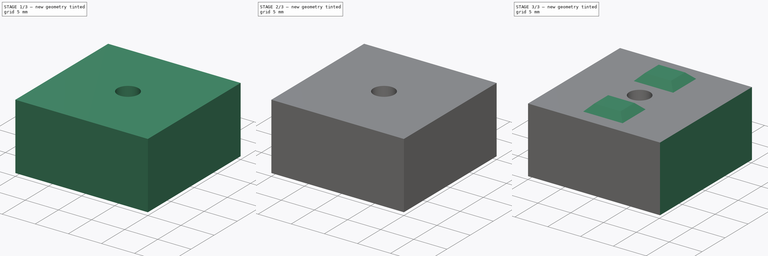
[diagram: build sequence overview — one tinted view per stage of 3, left to right]
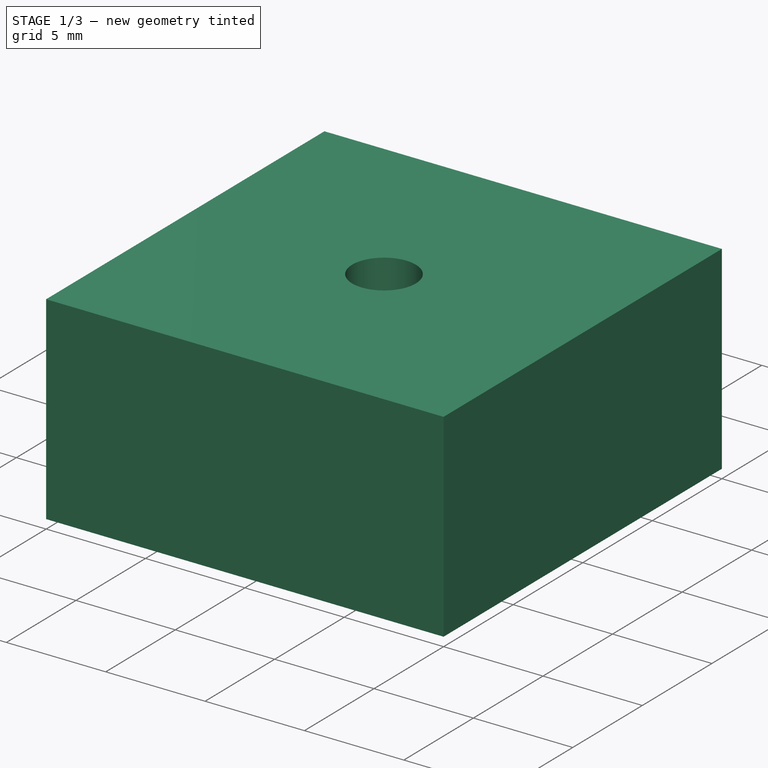
[diagram: stage 1 of 3 — iso view after this stage's code; geometry added in this stage tinted green]
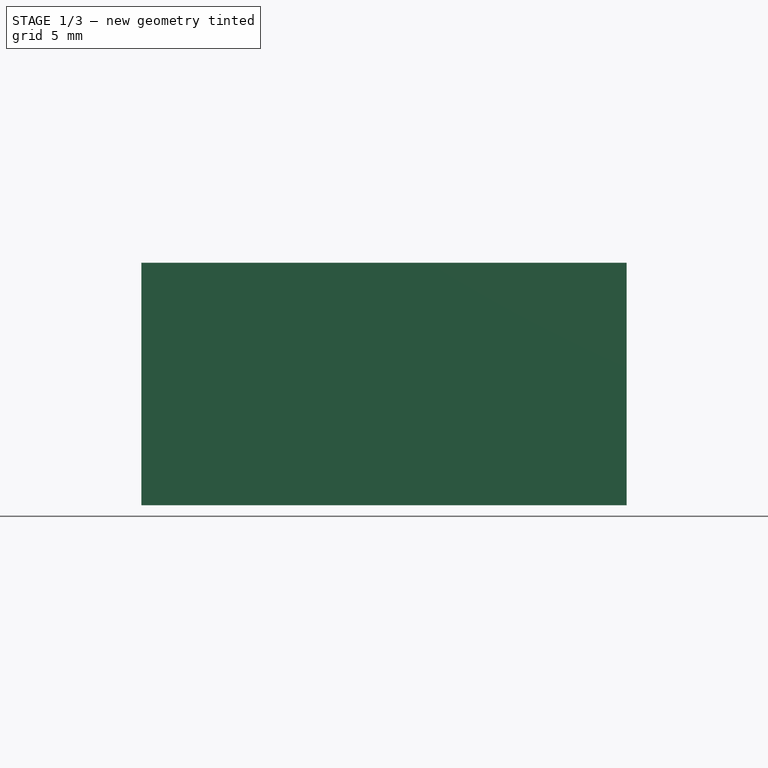
[diagram: stage 1 of 3 — front view after this stage's code; geometry added in this stage tinted green]
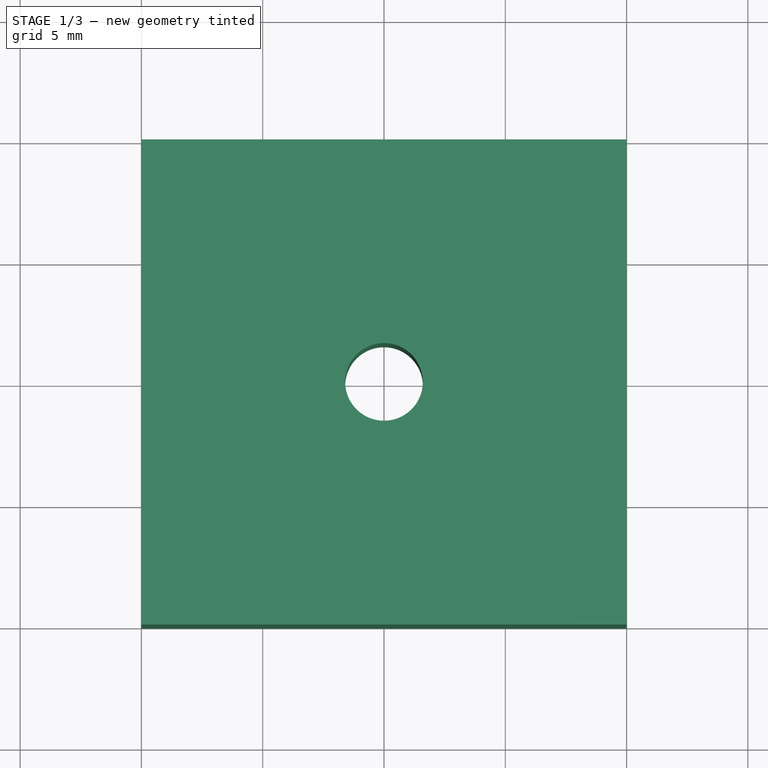
[diagram: stage 1 of 3 — top view after this stage's code; geometry added in this stage tinted green]
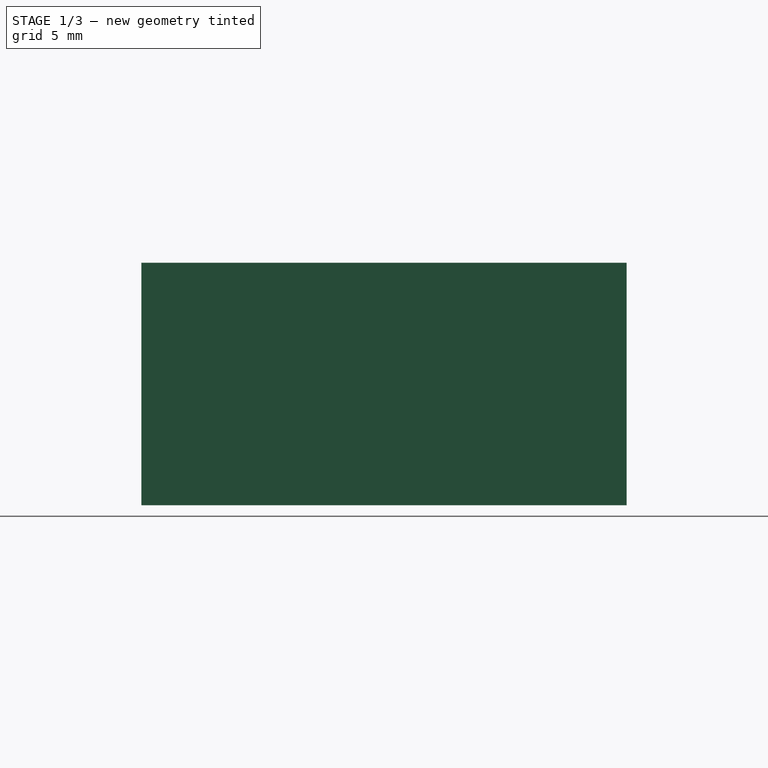
[diagram: stage 1 of 3 — right view after this stage's code; geometry added in this stage tinted green]
FCSTD DOCUMENT  (FreeCAD 1.0R39109 (Git))
Label: m3 2020 mount
License: All rights reserved
objects: Sketcher::SketchObject×6, PartDesign::Pocket×4, PartDesign::Pad×3, PartDesign::Body×1
note: 34 computed .brp shape members not serialized (recipe doc carries the construction recipe); baked Part::Feature solids carry a one-line shape summary decoded from their .brp

FEATURE [Sketcher::SketchObject] Sketch001
  ArcFitTolerance = 1e-06
  AttachmentSupport = -> [XY_Plane]
  FullyConstrained = true
  MakeInternals = false
  MapMode = 5
  sketch-geometry (5):
    g0: LineSegment StartX=-10 StartY=10 StartZ=0 EndX=-10 EndY=-10 EndZ=0
    g1: LineSegment StartX=-10 StartY=-10 StartZ=0 EndX=10 EndY=-10 EndZ=0
    g2: LineSegment StartX=10 StartY=-10 StartZ=0 EndX=10 EndY=10 EndZ=0
    g3: LineSegment StartX=10 StartY=10 StartZ=0 EndX=-10 EndY=10 EndZ=0
    g4: GeomPoint [constr] X=0 Y=0 Z=0
  constraints (12):
    c: Coincident(g0,g1)
    c: Coincident(g1,g2)
    c: Coincident(g2,g3)
    c: Coincident(g3,g0)
    c: Vertical(g0)
    c: Vertical(g2)
    c: Horizontal(g1)
    c: Horizontal(g3)
    c: Symmetric(g2,g0,g4)
    c: Coincident(g4,g-1)
    c: DistanceX(g3,g3) = 20
    c: Equal(g3,g2)
FEATURE [PartDesign::Pad] Pad
  Direction = (0,0,1)
  Length = 10
  Length2 = 10
  Profile = -> Sketch001
  ReferenceAxis = -> Sketch001 [N_Axis]
  Refine = true
  Suppressed = false
  Type = 0
FEATURE [Sketcher::SketchObject] Sketch002
  ArcFitTolerance = 1e-06
  AttachmentSupport = -> [XY_Plane]
  FullyConstrained = true
  MakeInternals = false
  MapMode = 5
  sketch-geometry (1):
    g0: Circle CenterX=0 CenterY=0 CenterZ=0 NormalX=0 NormalY=0 NormalZ=1 AngleXU=0 Radius=3.5
  constraints (2):
    c: Coincident(g0,g-1)
    c: Diameter(g0) = 7
FEATURE [Sketcher::SketchObject] Sketch003
  ArcFitTolerance = 1e-06
  AttachmentSupport = -> [XY_Plane]
  FullyConstrained = true
  MakeInternals = false
  MapMode = 5
  sketch-geometry (1):
    g0: Circle CenterX=0 CenterY=0 CenterZ=0 NormalX=0 NormalY=0 NormalZ=1 AngleXU=0 Radius=1.6
  constraints (2):
    c: Coincident(g0,g-1)
    c: Diameter(g0) = 3.2
FEATURE [PartDesign::Pocket] Pocket
  BaseFeature = -> Pad
  Direction = (0,0,-1)
  Length = 5
  Length2 = 5
  Midplane = true
  Profile = -> Sketch003
  ReferenceAxis = -> Sketch003 [N_Axis]
  Refine = true
  Suppressed = false
  Type = 1
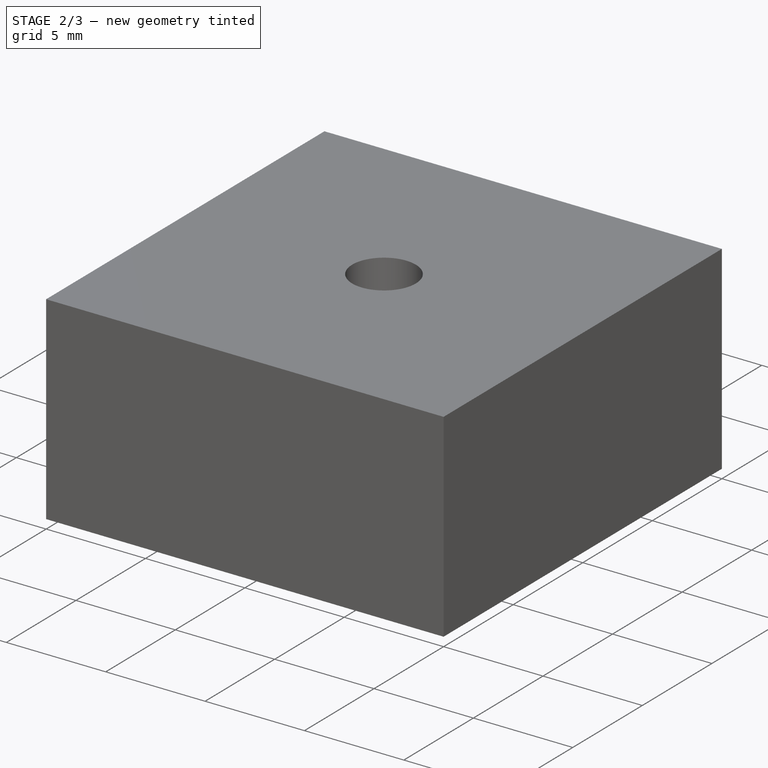
[diagram: stage 2 of 3 — iso view after this stage's code; geometry added in this stage tinted green]
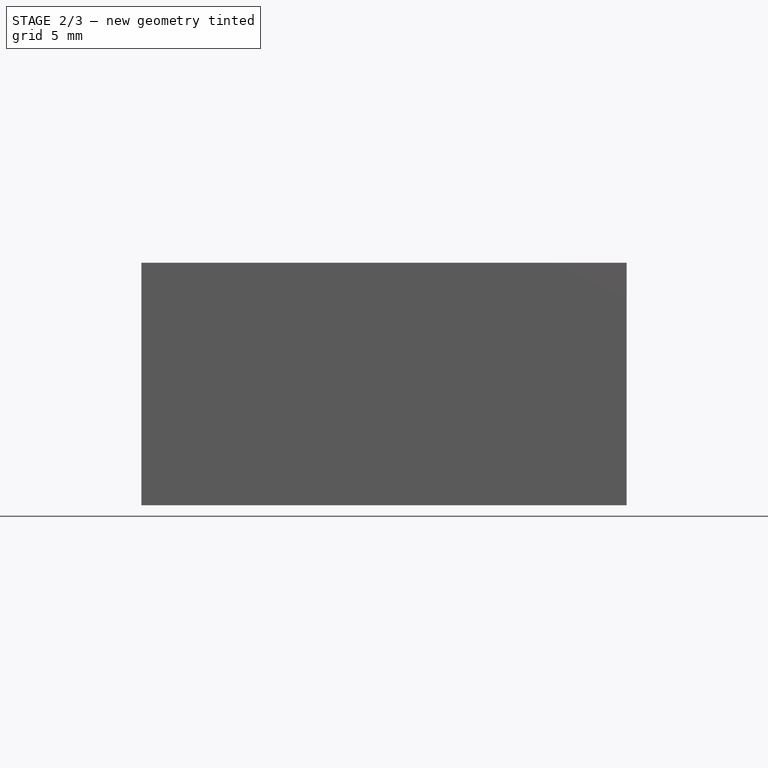
[diagram: stage 2 of 3 — front view after this stage's code; geometry added in this stage tinted green]
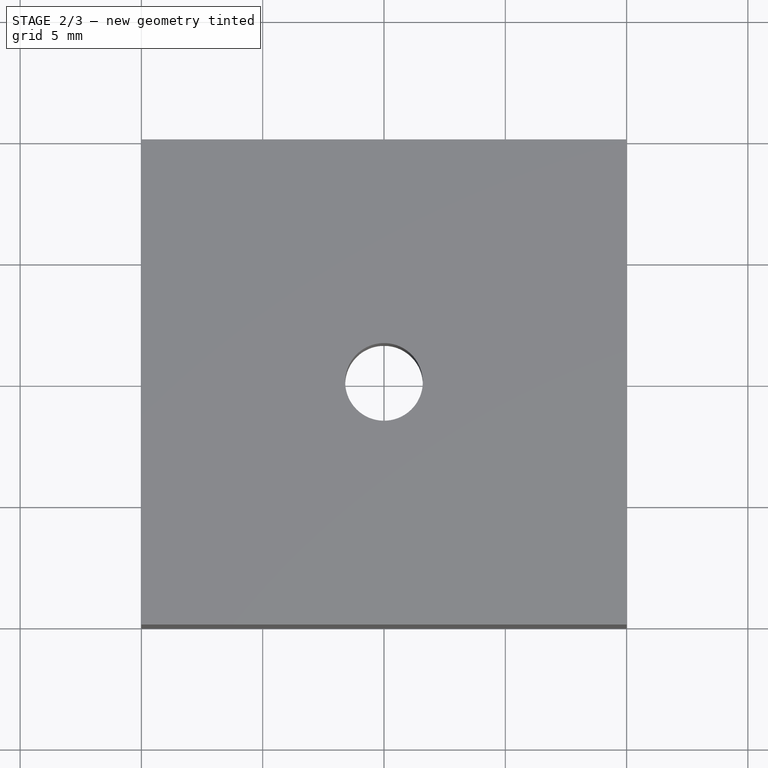
[diagram: stage 2 of 3 — top view after this stage's code; geometry added in this stage tinted green]
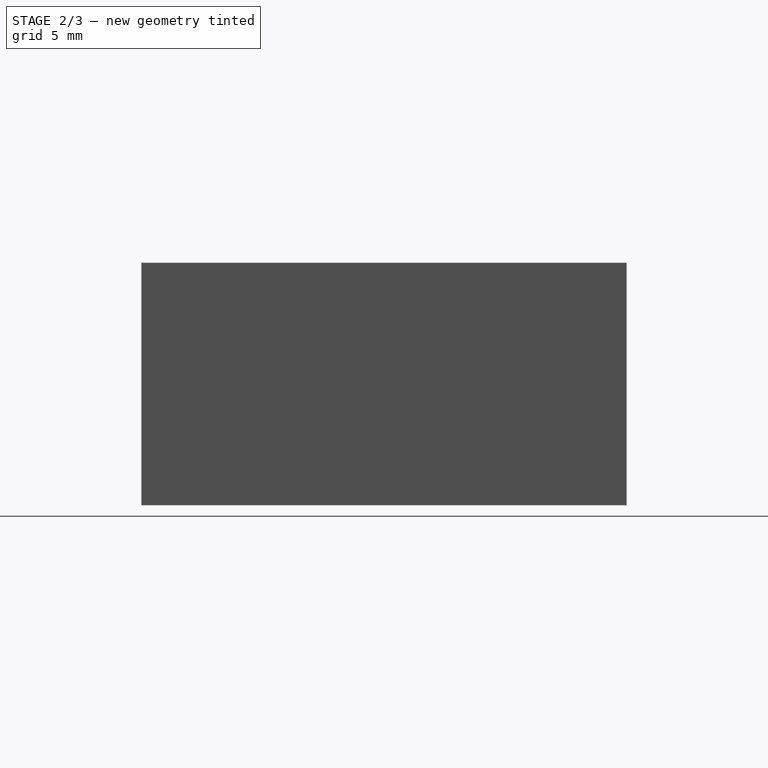
[diagram: stage 2 of 3 — right view after this stage's code; geometry added in this stage tinted green]
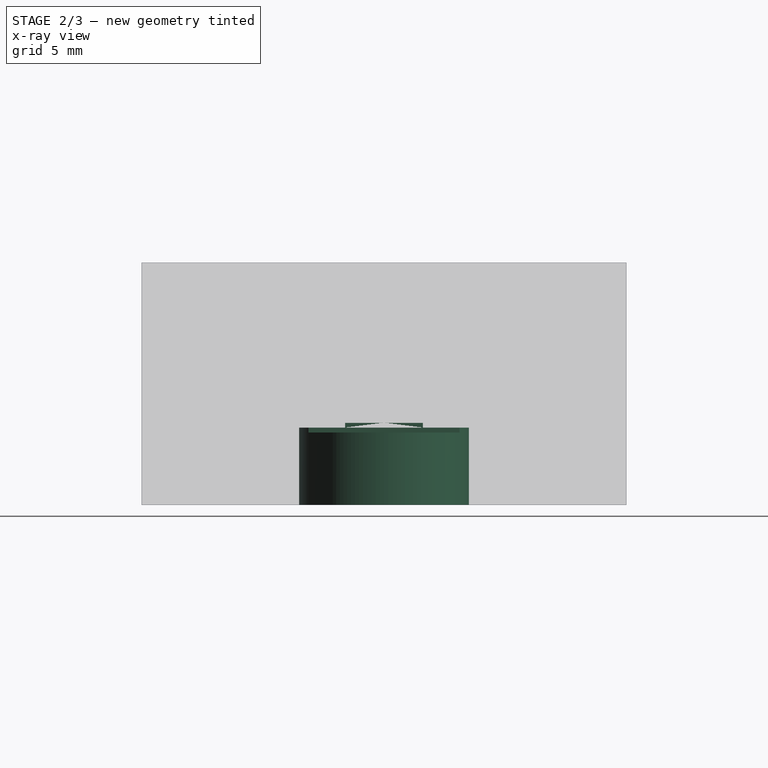
[diagram: stage 2 of 3 — x-ray composite at the right view; earlier geometry ghosted, this stage's added geometry solid]
FEATURE [PartDesign::Pocket] Pocket001
  BaseFeature = -> Pocket
  Direction = (0,0,-1)
  Length = 3
  Length2 = 5
  Profile = -> Sketch002
  ReferenceAxis = -> Sketch002 [N_Axis]
  Refine = true
  Reversed = true
  Suppressed = false
  Type = 0
FEATURE [Sketcher::SketchObject] Sketch004
  ArcFitTolerance = 1e-06
  AttachmentSupport = -> [Pocket001]
  FullyConstrained = true
  MakeInternals = false
  MapMode = 5
  Placement = pos=(0,0,3) rot=(1,0,0;3.14159rad)
  expr: Constraints[1] = Sketch003.Constraints[1]
  expr: Constraints[3] = Sketch002.Constraints[1]
  sketch-geometry (6):
    g0: Circle [constr] CenterX=0 CenterY=0 CenterZ=0 NormalX=0 NormalY=0 NormalZ=1 AngleXU=0 Radius=1.6
    g1: Circle [constr] CenterX=0 CenterY=0 CenterZ=0 NormalX=0 NormalY=0 NormalZ=1 AngleXU=0 Radius=3.5
    g2: ArcOfCircle CenterX=-8.2742e-12 CenterY=8.30626e-11 CenterZ=0 NormalX=0 NormalY=0 NormalZ=1 AngleXU=0 Radius=3.5 StartAngle=1.09602 EndAngle=2.04558
    g3: ArcOfCircle CenterX=-8.2744e-12 CenterY=-8.30632e-11 CenterZ=0 NormalX=0 NormalY=0 NormalZ=1 AngleXU=0 Radius=3.5 StartAngle=4.23761 EndAngle=5.18717
    g4: LineSegment StartX=1.6 StartY=3.11288 StartZ=0 EndX=1.6 EndY=-3.11288 EndZ=0
    g5: LineSegment StartX=-1.6 StartY=3.11288 StartZ=0 EndX=-1.6 EndY=-3.11288 EndZ=0
  constraints (16):
    c: Coincident(g0,g-1)
    c: Diameter(g0) = 3.2
    c: Coincident(g1,g-1)
    c: Diameter(g1) = 7
    c: Tangent(g2,g1) = -1.5708
    c: PointOnObject(g2,g1)
    c: Tangent(g3,g1) = -1.5708
    c: PointOnObject(g3,g1)
    c: Coincident(g4,g2)
    c: Coincident(g4,g3)
    c: Coincident(g5,g2)
    c: Coincident(g5,g3)
    c: Vertical(g5)
    c: Vertical(g4)
    c: Tangent(g4,g0)
    c: Tangent(g5,g0)
FEATURE [PartDesign::Pocket] Pocket002
  BaseFeature = -> Pocket001
  Direction = (0,0,1)
  Length = 0.2
  Length2 = 5
  Profile = -> Sketch004
  ReferenceAxis = -> Sketch004 [N_Axis]
  Refine = true
  Suppressed = false
  Type = 0
FEATURE [Sketcher::SketchObject] Sketch005
  ArcFitTolerance = 1e-06
  AttachmentSupport = -> [Pocket002]
  FullyConstrained = true
  MakeInternals = false
  MapMode = 5
  Placement = pos=(0,0,3.2) rot=(1,0,0;3.14159rad)
  expr: Constraints[1] = Sketch003.Constraints[1]
  sketch-geometry (6):
    g0: Circle [constr] CenterX=0 CenterY=0 CenterZ=0 NormalX=0 NormalY=0 NormalZ=1 AngleXU=0 Radius=1.6
    g1: LineSegment StartX=-1.6 StartY=1.6 StartZ=0 EndX=-1.6 EndY=-1.6 EndZ=0
    g2: LineSegment StartX=-1.6 StartY=-1.6 StartZ=0 EndX=1.6 EndY=-1.6 EndZ=0
    g3: LineSegment StartX=1.6 StartY=-1.6 StartZ=0 EndX=1.6 EndY=1.6 EndZ=0
    g4: LineSegment StartX=1.6 StartY=1.6 StartZ=0 EndX=-1.6 EndY=1.6 EndZ=0
    g5: GeomPoint [constr] X=0 Y=0 Z=0
  constraints (14):
    c: Coincident(g0,g-1)
    c: Diameter(g0) = 3.2
    c: Coincident(g1,g2)
    c: Coincident(g2,g3)
    c: Coincident(g3,g4)
    c: Coincident(g4,g1)
    c: Vertical(g1)
    c: Vertical(g3)
    c: Horizontal(g2)
    c: Horizontal(g4)
    c: Symmetric(g3,g1,g5)
    c: Coincident(g5,g0)
    c: Equal(g4,g3)
    c: Tangent(g3,g0)
FEATURE [PartDesign::Pocket] Pocket003
  BaseFeature = -> Pocket002
  Direction = (0,0,1)
  Length = 0.2
  Length2 = 5
  Profile = -> Sketch005
  ReferenceAxis = -> Sketch005 [N_Axis]
  Refine = true
  Suppressed = false
  Type = 0
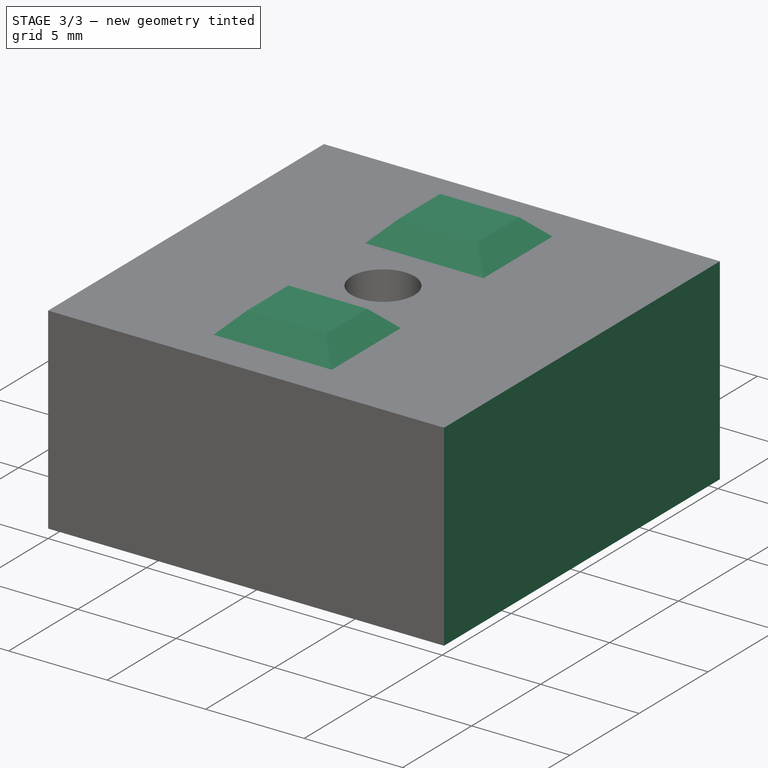
[diagram: stage 3 of 3 — iso view after this stage's code; geometry added in this stage tinted green]
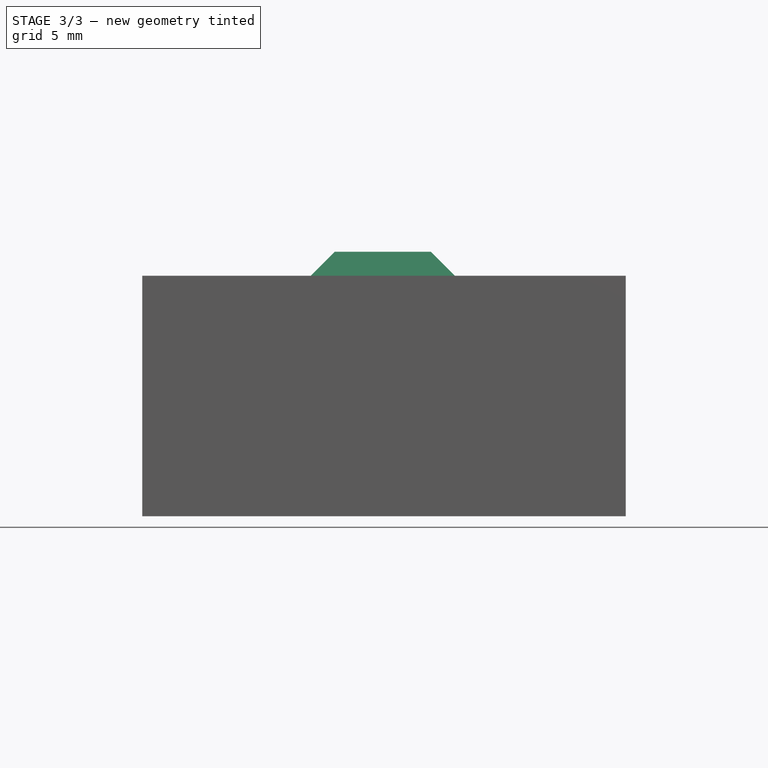
[diagram: stage 3 of 3 — front view after this stage's code; geometry added in this stage tinted green]
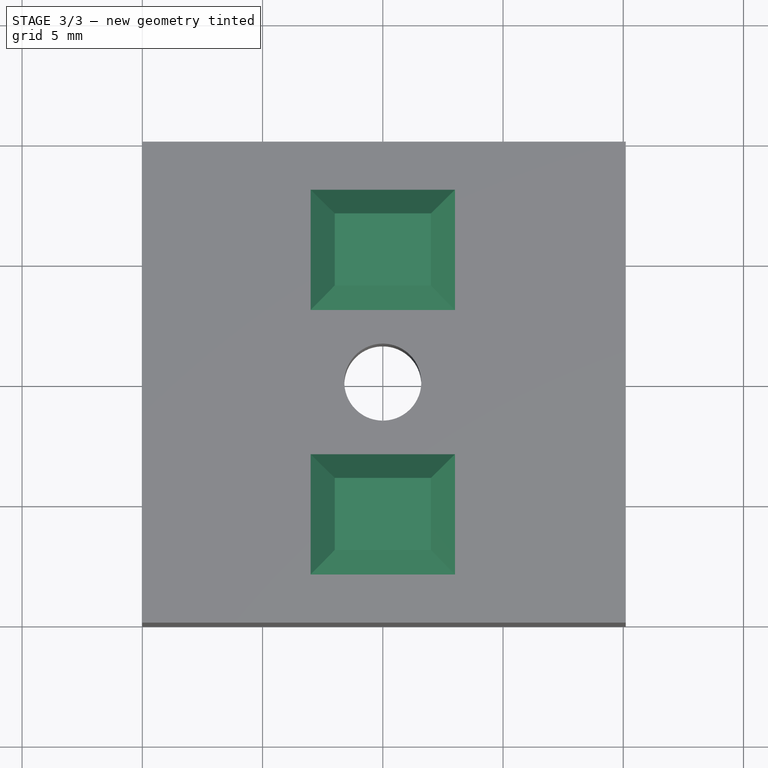
[diagram: stage 3 of 3 — top view after this stage's code; geometry added in this stage tinted green]
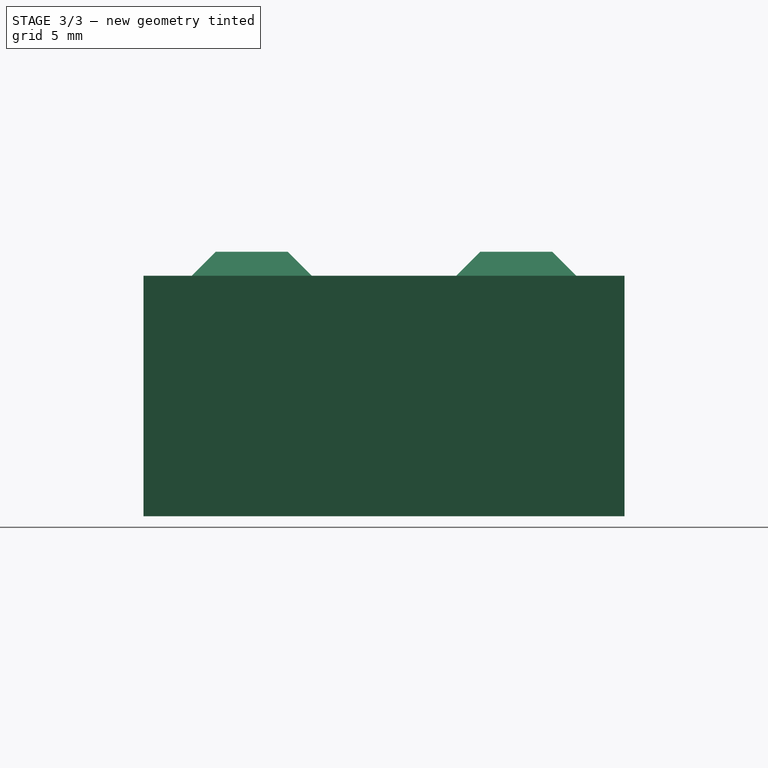
[diagram: stage 3 of 3 — right view after this stage's code; geometry added in this stage tinted green]
FEATURE [Sketcher::SketchObject] Sketch006
  ArcFitTolerance = 1e-06
  AttachmentSupport = -> [Pocket003]
  FullyConstrained = true
  MakeInternals = false
  MapMode = 5
  Placement = pos=(0,0,10) rot=(0,0,1;0rad)
  sketch-geometry (12):
    g0: LineSegment StartX=-3 StartY=8 StartZ=0 EndX=-3 EndY=3 EndZ=0
    g1: LineSegment StartX=-3 StartY=3 StartZ=0 EndX=3 EndY=3 EndZ=0
    g2: LineSegment StartX=3 StartY=3 StartZ=0 EndX=3 EndY=8 EndZ=0
    g3: LineSegment StartX=3 StartY=8 StartZ=0 EndX=-3 EndY=8 EndZ=0
    g4: GeomPoint [constr] X=0 Y=5.5 Z=0
    g5: LineSegment StartX=-3 StartY=-3 StartZ=0 EndX=-3 EndY=-8 EndZ=0
    g6: LineSegment StartX=-3 StartY=-8 StartZ=0 EndX=3 EndY=-8 EndZ=0
    g7: LineSegment StartX=3 StartY=-8 StartZ=0 EndX=3 EndY=-3 EndZ=0
    g8: LineSegment StartX=3 StartY=-3 StartZ=0 EndX=-3 EndY=-3 EndZ=0
    g9: GeomPoint [constr] X=0 Y=-5.5 Z=0
    g10: LineSegment [constr] StartX=3 StartY=-3 StartZ=0 EndX=3 EndY=0 EndZ=0
    g11: LineSegment [constr] StartX=3 StartY=0 StartZ=0 EndX=3 EndY=3 EndZ=0
  constraints (31):
    c: Coincident(g0,g1)
    c: Coincident(g1,g2)
    c: Coincident(g2,g3)
    c: Coincident(g3,g0)
    c: Vertical(g0)
    c: Vertical(g2)
    c: Horizontal(g1)
    c: Horizontal(g3)
    c: Symmetric(g2,g0,g4)
    c: PointOnObject(g4,g-2)
    c: Coincident(g5,g6)
    c: Coincident(g6,g7)
    c: Coincident(g7,g8)
    c: Coincident(g8,g5)
    c: Vertical(g5)
    c: Vertical(g7)
    c: Horizontal(g6)
    c: Horizontal(g8)
    c: Symmetric(g7,g5,g9)
    c: PointOnObject(g9,g-2)
    c: Equal(g8,g1)
    c: Equal(g2,g7)
    c: DistanceY(g7,g7) = 5
    c: DistanceX(g6,g6) = 6
    c: Coincident(g10,g7)
    c: PointOnObject(g10,g-1)
    c: Vertical(g10)
    c: Coincident(g11,g10)
    c: Coincident(g11,g1)
    c: Equal(g11,g10)
    c: Distance(g11,g11) = 3
FEATURE [PartDesign::Pad] Pad001
  BaseFeature = -> Pocket003
  Direction = (0,0,1)
  Length = 1
  Length2 = 10
  Profile = -> Sketch006
  ReferenceAxis = -> Sketch006 [N_Axis]
  Refine = true
  Suppressed = false
  TaperAngle = -45
  Type = 0
FEATURE [PartDesign::Pad] Pad002
  BaseFeature = -> Pad001
  Direction = (1,0,0)
  Length = 0.1
  Length2 = 10
  Profile = -> Pad001 [Face19]
  Refine = true
  Suppressed = false
  Type = 0
FEATURE [PartDesign::Body] Body
  AllowCompound = true
  Group = -> [Sketch001,Pad,Sketch002,Sketch003,Pocket,Pocket001,Sketch004,Pocket002,Sketch005,Pocket003,Sketch006,Pad001,Pad002]
  Origin = -> Origin
  Tip = -> Pad002
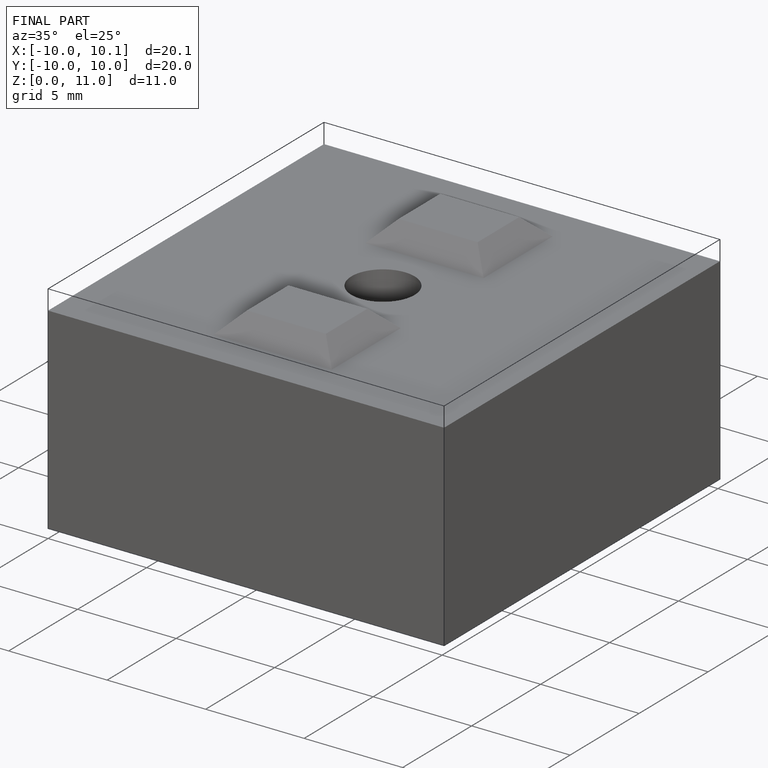
[diagram: finished part — iso view with bounding-box wireframe]
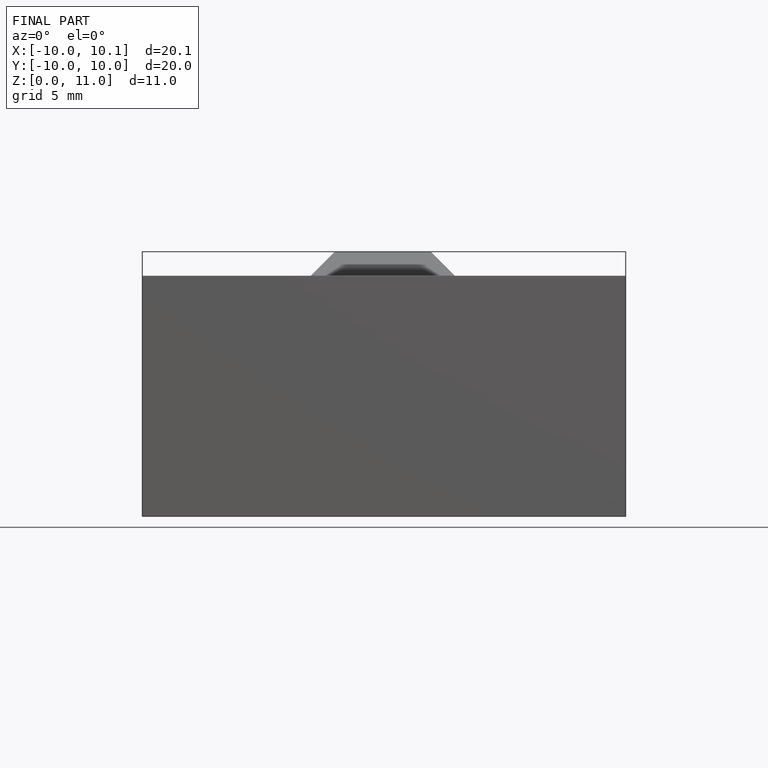
[diagram: finished part — front view with bounding-box wireframe]
